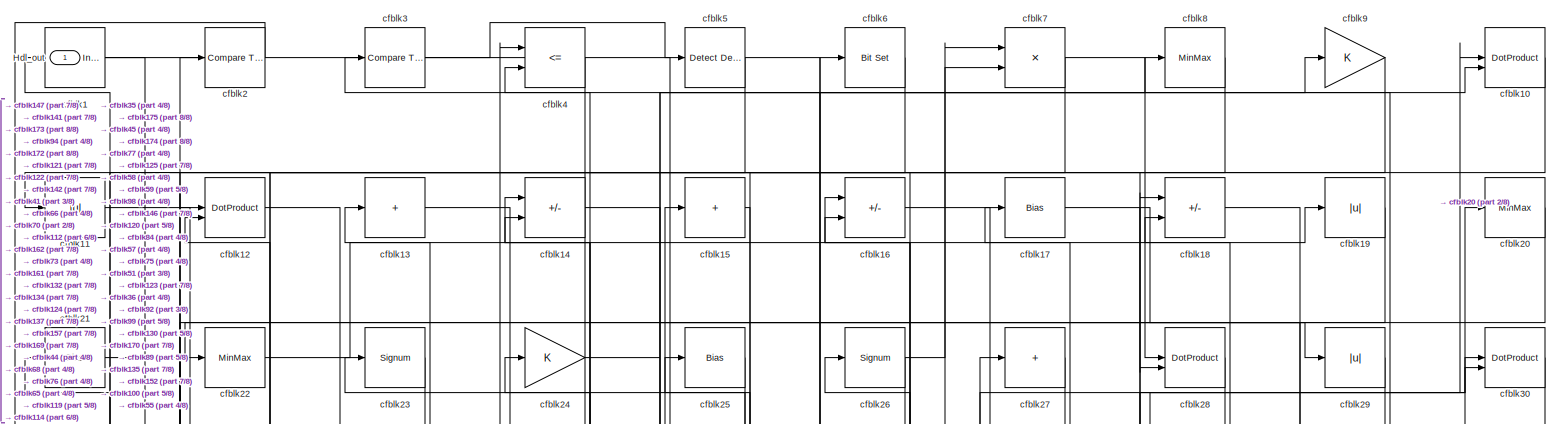
[diagram: root canvas - part 1/8, full width, top band]
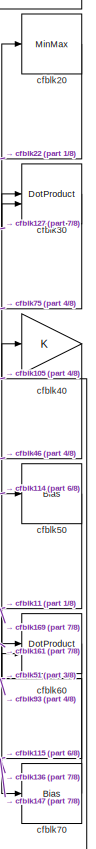
[diagram: root canvas - part 2/8, top right region]
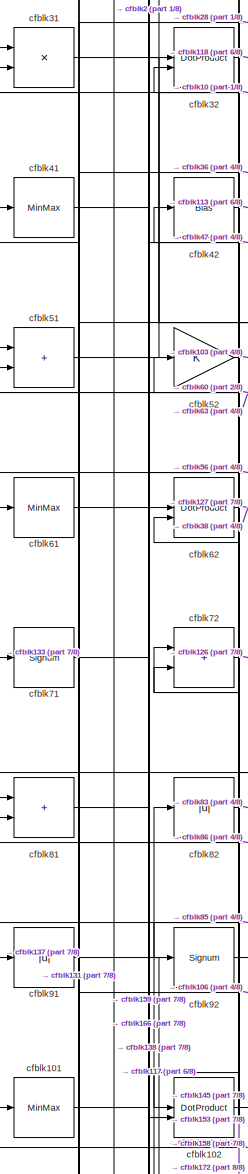
[diagram: root canvas - part 3/8, middle left region]
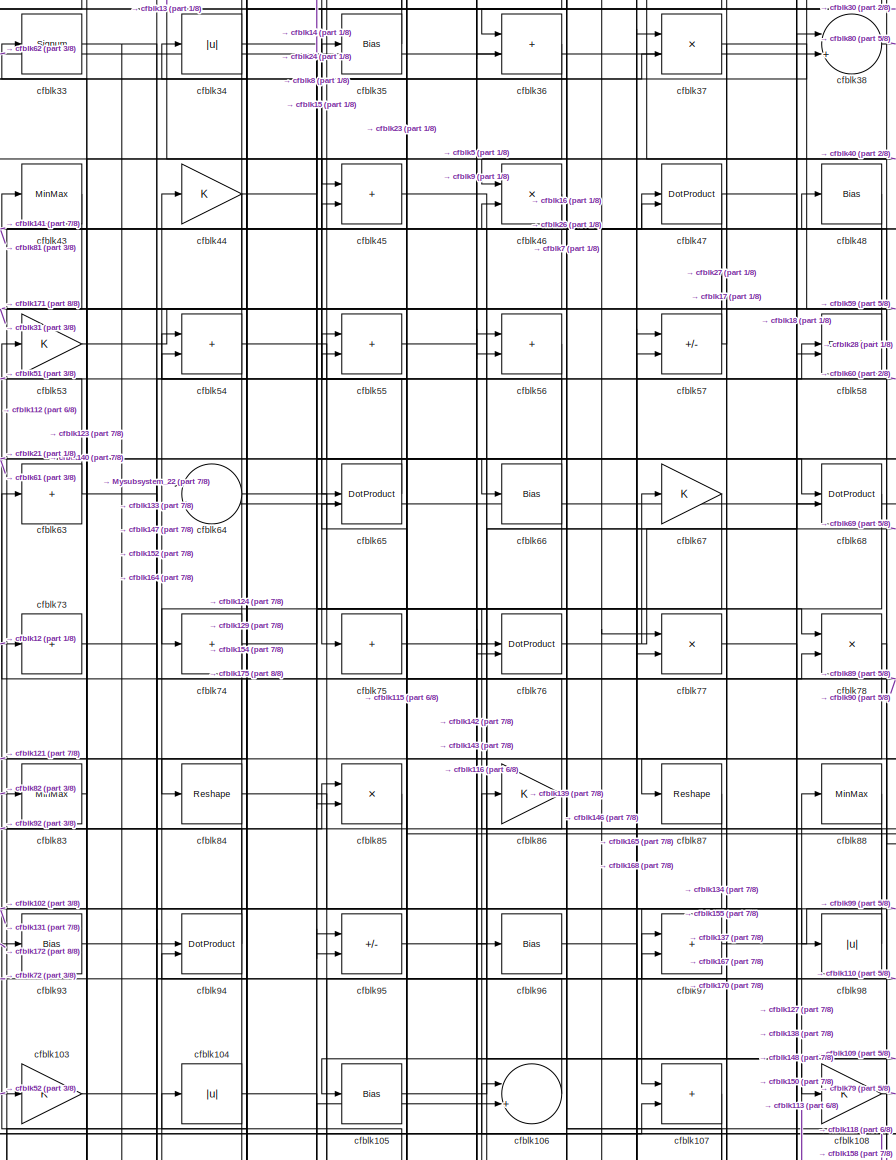
[diagram: root canvas - part 4/8, central region]
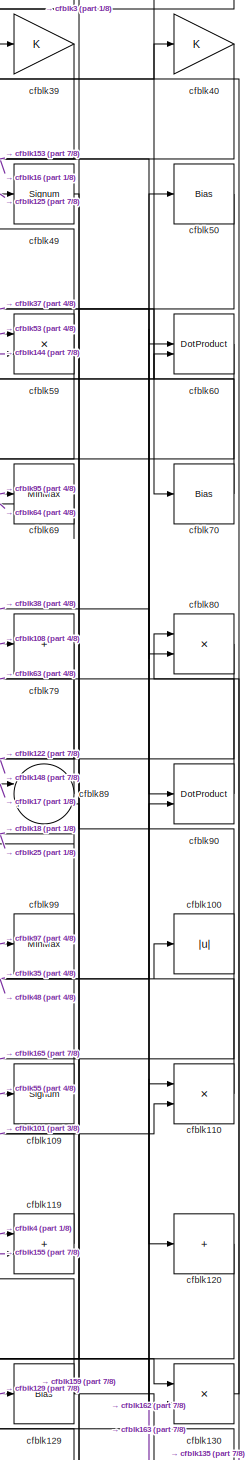
[diagram: root canvas - part 5/8, middle right region]
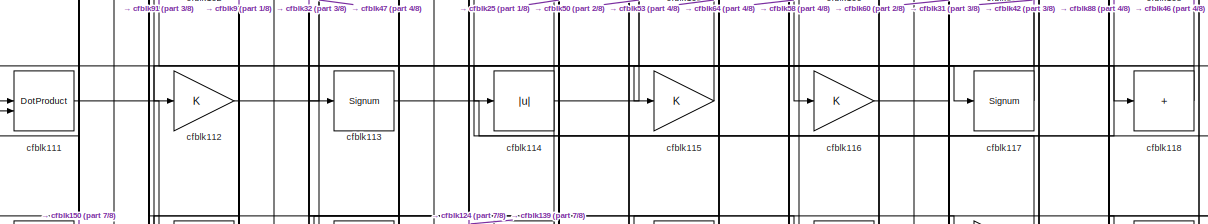
[diagram: root canvas - part 6/8, full width, middle band]
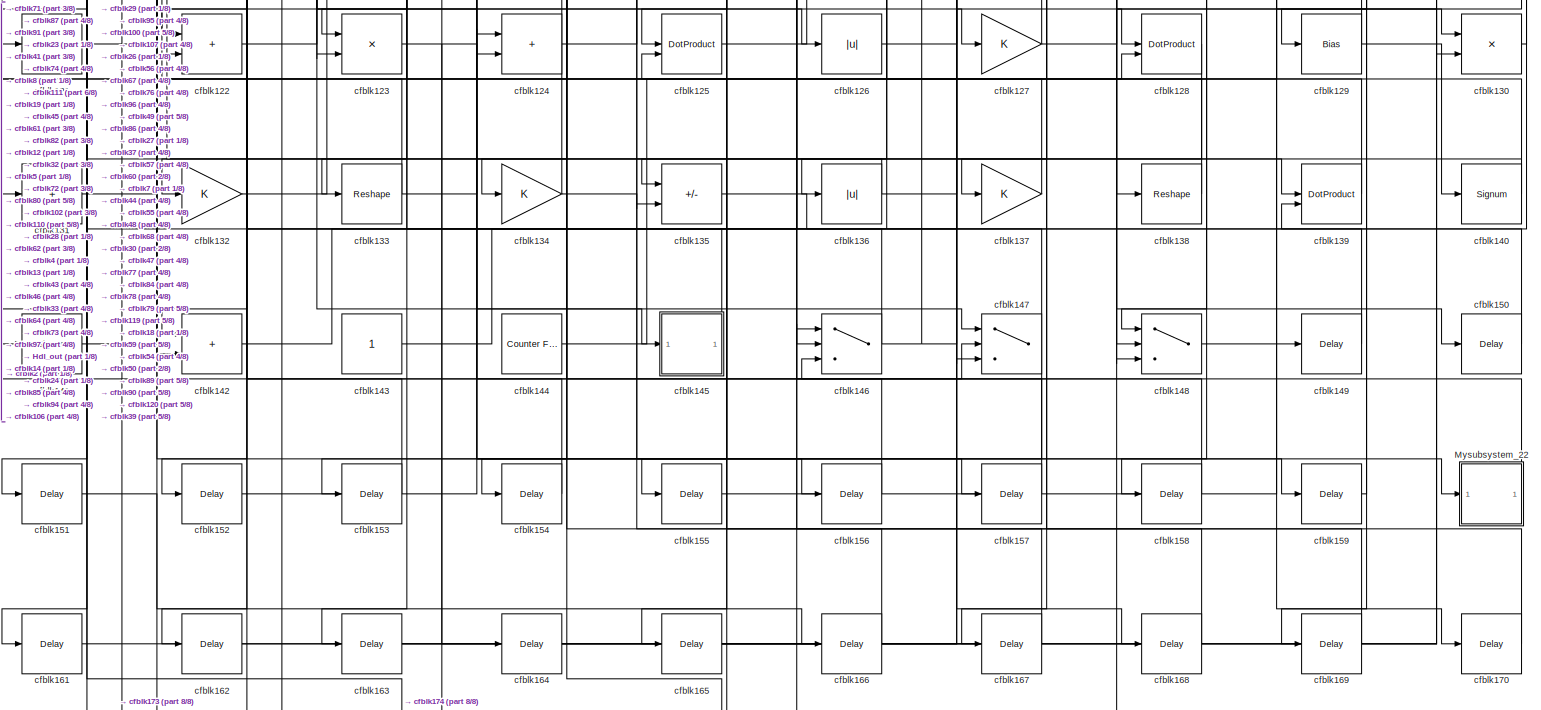
[diagram: root canvas - part 7/8, full width, bottom band]
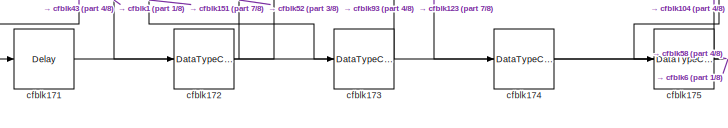
[diagram: root canvas - part 8/8, bottom left region]
MODEL slx_6eb5fe8cac7b
KIND model
CONFIG AbsTol = auto
CONFIG EnableMultiTasking = off
CONFIG FixedStep = auto
CONFIG MaxStep = auto
CONFIG MinStep = auto
CONFIG RelTol = 1e-3
CONFIG SampleTimeConstraint = Unconstrained
CONFIG SolverName = VariableStepAuto
CONFIG StartTime = 0.0
CONFIG StopTime = 10.0
BLOCK [Outport] Hdl_out
  OutDataTypeStr = uint8
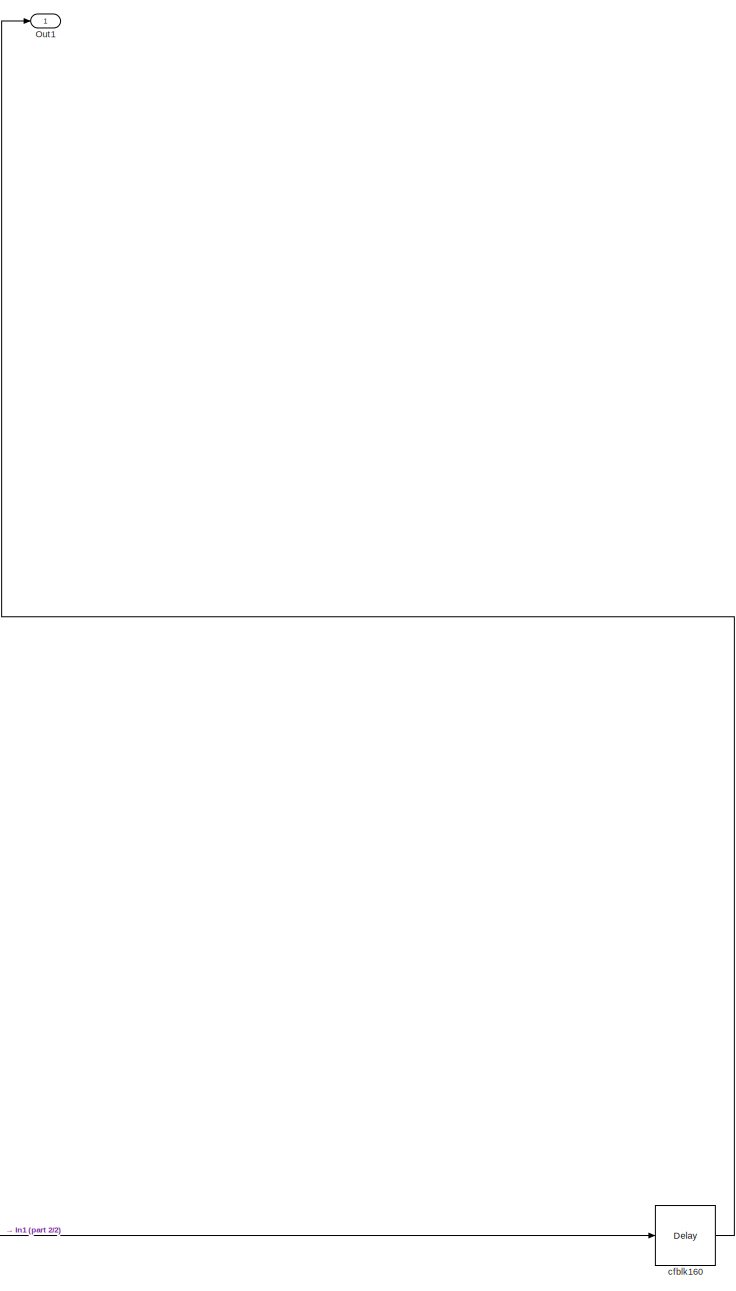
[diagram: Mysubsystem_22 - part 1/2, right side, full height]
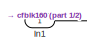
[diagram: Mysubsystem_22 - part 2/2, top left region]
BLOCK [SubSystem] Mysubsystem_22
  RTWFcnName = Mysubsystem_22
  RTWFcnNameOpts = User specified
  RTWFileNameOpts = Use function name
  RTWSystemCode = Reusable function
  TreatAsAtomicUnit = on
BLOCK [Inport] Mysubsystem_22/In1
BLOCK [Outport] Mysubsystem_22/Out1
BLOCK [Delay] Mysubsystem_22/cfblk160
  InputPortMap = u0
  SampleTime = 1
BLOCK [Reference] cfblk1  REF=simulink/Logic and Bit
Operations/Detect
Increase
  LibrarySourceBlock = hdlsllib/Logic and Bit\nOperations/Detect\nIncrease
  SourceBlock = simulink/Logic and Bit\nOperations/Detect\nIncrease
  SourceType = Detect Increase
BLOCK [DotProduct] cfblk10
  OutDataTypeStr = uint8
BLOCK [Abs] cfblk100
  OutDataTypeStr = uint8
  SaturateOnIntegerOverflow = off
BLOCK [MinMax] cfblk101
  OutDataTypeStr = uint8
BLOCK [DotProduct] cfblk102
  OutDataTypeStr = uint8
BLOCK [Gain] cfblk103
  OutDataTypeStr = uint8
BLOCK [Abs] cfblk104
  OutDataTypeStr = uint8
  SaturateOnIntegerOverflow = off
BLOCK [Bias] cfblk105
  Bias = 0.0
  SaturateOnIntegerOverflow = off
BLOCK [Sum] cfblk106
  Inputs = |++
  OutDataTypeStr = uint8
BLOCK [Sum] cfblk107
  IconShape = rectangular
  OutDataTypeStr = uint8
BLOCK [Gain] cfblk108
  OutDataTypeStr = uint8
BLOCK [Signum] cfblk109
BLOCK [Abs] cfblk11
  OutDataTypeStr = uint8
  SaturateOnIntegerOverflow = off
BLOCK [Product] cfblk110
  Inputs = */
  OutDataTypeStr = uint8
  RndMeth = Zero
  SaturateOnIntegerOverflow = on
BLOCK [DotProduct] cfblk111
  OutDataTypeStr = uint8
BLOCK [Gain] cfblk112
  OutDataTypeStr = uint8
BLOCK [Signum] cfblk113
BLOCK [Abs] cfblk114
  OutDataTypeStr = uint8
  SaturateOnIntegerOverflow = off
BLOCK [Gain] cfblk115
  OutDataTypeStr = uint8
BLOCK [Gain] cfblk116
  OutDataTypeStr = uint8
BLOCK [Signum] cfblk117
BLOCK [Sum] cfblk118
  IconShape = rectangular
  Inputs = +
  OutDataTypeStr = uint8
BLOCK [Sum] cfblk119
  IconShape = rectangular
  OutDataTypeStr = uint8
BLOCK [DotProduct] cfblk12
  OutDataTypeStr = uint8
BLOCK [Sum] cfblk120
  IconShape = rectangular
  Inputs = +
  OutDataTypeStr = uint8
BLOCK [Sum] cfblk121
  IconShape = rectangular
  Inputs = +
  OutDataTypeStr = uint8
BLOCK [Sum] cfblk122
  IconShape = rectangular
  OutDataTypeStr = uint8
BLOCK [Product] cfblk123
  Inputs = */
  OutDataTypeStr = uint8
  RndMeth = Zero
  SaturateOnIntegerOverflow = on
BLOCK [Sum] cfblk124
  IconShape = rectangular
  OutDataTypeStr = uint8
BLOCK [DotProduct] cfblk125
  OutDataTypeStr = uint8
BLOCK [Abs] cfblk126
  OutDataTypeStr = uint8
  SaturateOnIntegerOverflow = off
BLOCK [Gain] cfblk127
  OutDataTypeStr = uint8
BLOCK [DotProduct] cfblk128
  OutDataTypeStr = uint8
BLOCK [Bias] cfblk129
  Bias = 0.0
  SaturateOnIntegerOverflow = off
BLOCK [Sum] cfblk13
  IconShape = rectangular
  Inputs = +
  OutDataTypeStr = uint8
BLOCK [Product] cfblk130
  Inputs = */
  OutDataTypeStr = uint8
  RndMeth = Zero
  SaturateOnIntegerOverflow = on
BLOCK [Sum] cfblk131
  IconShape = rectangular
  Inputs = +
  OutDataTypeStr = uint8
BLOCK [Gain] cfblk132
  OutDataTypeStr = uint8
BLOCK [Reshape] cfblk133
BLOCK [Gain] cfblk134
  OutDataTypeStr = uint8
BLOCK [Sum] cfblk135
  IconShape = rectangular
  Inputs = +-
  OutDataTypeStr = uint8
BLOCK [Abs] cfblk136
  OutDataTypeStr = uint8
  SaturateOnIntegerOverflow = off
BLOCK [Gain] cfblk137
  OutDataTypeStr = uint8
BLOCK [Reshape] cfblk138
BLOCK [DotProduct] cfblk139
  OutDataTypeStr = uint8
BLOCK [Sum] cfblk14
  IconShape = rectangular
  Inputs = +-
  OutDataTypeStr = uint8
BLOCK [Signum] cfblk140
BLOCK [Signum] cfblk141
BLOCK [Sum] cfblk142
  IconShape = rectangular
  OutDataTypeStr = uint8
BLOCK [Constant] cfblk143
  OutDataTypeStr = uint8
  SampleTime = -1
BLOCK [Reference] cfblk144  REF=hdlsllib/Sources/Counter
Free-Running
  SourceBlock = hdlsllib/Sources/Counter\nFree-Running
  SourceType = Counter Free-Running
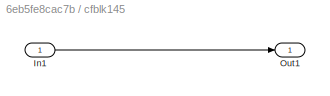
BLOCK [SubSystem] cfblk145
  LibrarySourceBlock = hdlsllib/Ports &\nSubsystems/Subsystem
BLOCK [Inport] cfblk145/In1
BLOCK [Outport] cfblk145/Out1
BLOCK [Switch] cfblk146
  InputSameDT = off
  OutDataTypeStr = uint8
  SaturateOnIntegerOverflow = off
BLOCK [Switch] cfblk147
  InputSameDT = off
  OutDataTypeStr = uint8
  SaturateOnIntegerOverflow = off
BLOCK [Switch] cfblk148
  InputSameDT = off
  OutDataTypeStr = uint8
  SaturateOnIntegerOverflow = off
BLOCK [Delay] cfblk149
  InputPortMap = u0
  SampleTime = 1
BLOCK [Sum] cfblk15
  IconShape = rectangular
  Inputs = +
  OutDataTypeStr = uint8
BLOCK [Delay] cfblk150
  InputPortMap = u0
  SampleTime = 1
BLOCK [Delay] cfblk151
  InputPortMap = u0
  SampleTime = 1
BLOCK [Delay] cfblk152
  InputPortMap = u0
  SampleTime = 1
BLOCK [Delay] cfblk153
  InputPortMap = u0
  SampleTime = 1
BLOCK [Delay] cfblk154
  InputPortMap = u0
  SampleTime = 1
BLOCK [Delay] cfblk155
  InputPortMap = u0
  SampleTime = 1
BLOCK [Delay] cfblk156
  InputPortMap = u0
  SampleTime = 1
BLOCK [Delay] cfblk157
  InputPortMap = u0
  SampleTime = 1
BLOCK [Delay] cfblk158
  InputPortMap = u0
  SampleTime = 1
BLOCK [Delay] cfblk159
  InputPortMap = u0
  SampleTime = 1
BLOCK [Sum] cfblk16
  IconShape = rectangular
  Inputs = +-
  OutDataTypeStr = uint8
BLOCK [Delay] cfblk161
  InputPortMap = u0
  SampleTime = 1
BLOCK [Delay] cfblk162
  InputPortMap = u0
  SampleTime = 1
BLOCK [Delay] cfblk163
  InputPortMap = u0
  SampleTime = 1
BLOCK [Delay] cfblk164
  InputPortMap = u0
  SampleTime = 1
BLOCK [Delay] cfblk165
  InputPortMap = u0
  SampleTime = 1
BLOCK [Delay] cfblk166
  InputPortMap = u0
  SampleTime = 1
BLOCK [Delay] cfblk167
  InputPortMap = u0
  SampleTime = 1
BLOCK [Delay] cfblk168
  InputPortMap = u0
  SampleTime = 1
BLOCK [Delay] cfblk169
  InputPortMap = u0
  SampleTime = 1
BLOCK [Bias] cfblk17
  Bias = 0.0
  SaturateOnIntegerOverflow = off
BLOCK [Delay] cfblk170
  InputPortMap = u0
  SampleTime = 1
BLOCK [Delay] cfblk171
  InputPortMap = u0
  SampleTime = 1
BLOCK [DataTypeConversion] cfblk172
  OutDataTypeStr = uint8
  RndMeth = Floor
  SaturateOnIntegerOverflow = off
BLOCK [DataTypeConversion] cfblk173
  OutDataTypeStr = uint8
  RndMeth = Floor
  SaturateOnIntegerOverflow = off
BLOCK [DataTypeConversion] cfblk174
  OutDataTypeStr = uint8
  RndMeth = Floor
  SaturateOnIntegerOverflow = off
BLOCK [DataTypeConversion] cfblk175
  OutDataTypeStr = uint8
  RndMeth = Floor
  SaturateOnIntegerOverflow = off
BLOCK [Sum] cfblk18
  IconShape = rectangular
  Inputs = +-
  OutDataTypeStr = uint8
BLOCK [Abs] cfblk19
  OutDataTypeStr = uint8
  SaturateOnIntegerOverflow = off
BLOCK [Reference] cfblk2  REF=hdlsllib/Logic and Bit
Operations/Compare
To Constant
  SourceBlock = hdlsllib/Logic and Bit\nOperations/Compare\nTo Constant
  SourceType = Compare To Constant
BLOCK [MinMax] cfblk20
  OutDataTypeStr = uint8
BLOCK [Bias] cfblk21
  Bias = 0.0
  SaturateOnIntegerOverflow = off
BLOCK [MinMax] cfblk22
  OutDataTypeStr = uint8
BLOCK [Signum] cfblk23
BLOCK [Gain] cfblk24
  OutDataTypeStr = uint8
BLOCK [Bias] cfblk25
  Bias = 0.0
  SaturateOnIntegerOverflow = off
BLOCK [Signum] cfblk26
BLOCK [Sum] cfblk27
  IconShape = rectangular
  Inputs = +
  OutDataTypeStr = uint8
BLOCK [DotProduct] cfblk28
  OutDataTypeStr = uint8
BLOCK [Abs] cfblk29
  OutDataTypeStr = uint8
  SaturateOnIntegerOverflow = off
BLOCK [Reference] cfblk3  REF=hdlsllib/Logic and Bit
Operations/Compare
To Constant
  SourceBlock = hdlsllib/Logic and Bit\nOperations/Compare\nTo Constant
  SourceType = Compare To Constant
BLOCK [DotProduct] cfblk30
  OutDataTypeStr = uint8
BLOCK [Product] cfblk31
  Inputs = */
  OutDataTypeStr = uint8
  RndMeth = Zero
  SaturateOnIntegerOverflow = on
BLOCK [DotProduct] cfblk32
  OutDataTypeStr = uint8
BLOCK [Signum] cfblk33
BLOCK [Abs] cfblk34
  OutDataTypeStr = uint8
  SaturateOnIntegerOverflow = off
BLOCK [Bias] cfblk35
  Bias = 0.0
  SaturateOnIntegerOverflow = off
BLOCK [Sum] cfblk36
  IconShape = rectangular
  OutDataTypeStr = uint8
BLOCK [Product] cfblk37
  Inputs = */
  OutDataTypeStr = uint8
  RndMeth = Zero
  SaturateOnIntegerOverflow = on
BLOCK [Sum] cfblk38
  Inputs = |++
  OutDataTypeStr = uint8
BLOCK [Gain] cfblk39
  OutDataTypeStr = uint8
BLOCK [RelationalOperator] cfblk4
  InputSameDT = off
  Operator = <=
  OutDataTypeStr = boolean
BLOCK [Gain] cfblk40
  OutDataTypeStr = uint8
BLOCK [MinMax] cfblk41
  OutDataTypeStr = uint8
BLOCK [Bias] cfblk42
  Bias = 0.0
  SaturateOnIntegerOverflow = off
BLOCK [MinMax] cfblk43
  OutDataTypeStr = uint8
BLOCK [Gain] cfblk44
  OutDataTypeStr = uint8
BLOCK [Sum] cfblk45
  IconShape = rectangular
  OutDataTypeStr = uint8
BLOCK [Product] cfblk46
  Inputs = */
  OutDataTypeStr = uint8
  RndMeth = Zero
  SaturateOnIntegerOverflow = on
BLOCK [DotProduct] cfblk47
  OutDataTypeStr = uint8
BLOCK [Bias] cfblk48
  Bias = 0.0
  SaturateOnIntegerOverflow = off
BLOCK [Signum] cfblk49
BLOCK [Reference] cfblk5  REF=simulink/Logic and Bit
Operations/Detect
Decrease
  LibrarySourceBlock = hdlsllib/Logic and Bit\nOperations/Detect\nDecrease
  SourceBlock = simulink/Logic and Bit\nOperations/Detect\nDecrease
  SourceType = Detect Decrease
BLOCK [Bias] cfblk50
  Bias = 0.0
  SaturateOnIntegerOverflow = off
BLOCK [Sum] cfblk51
  IconShape = rectangular
  OutDataTypeStr = uint8
BLOCK [Gain] cfblk52
  OutDataTypeStr = uint8
BLOCK [Gain] cfblk53
  OutDataTypeStr = uint8
BLOCK [Sum] cfblk54
  IconShape = rectangular
  OutDataTypeStr = uint8
BLOCK [Sum] cfblk55
  IconShape = rectangular
  OutDataTypeStr = uint8
BLOCK [Sum] cfblk56
  IconShape = rectangular
  OutDataTypeStr = uint8
BLOCK [Sum] cfblk57
  IconShape = rectangular
  Inputs = +-
  OutDataTypeStr = uint8
BLOCK [DotProduct] cfblk58
  OutDataTypeStr = uint8
BLOCK [Product] cfblk59
  Inputs = */
  OutDataTypeStr = uint8
  RndMeth = Zero
  SaturateOnIntegerOverflow = on
BLOCK [Reference] cfblk6  REF=simulink/Logic and Bit
Operations/Bit Set
  LibrarySourceBlock = hdlsllib/Logic and Bit\nOperations/Bit Set
  SourceBlock = simulink/Logic and Bit\nOperations/Bit Set
  SourceType = Bit Set
BLOCK [DotProduct] cfblk60
  OutDataTypeStr = uint8
BLOCK [MinMax] cfblk61
  OutDataTypeStr = uint8
BLOCK [DotProduct] cfblk62
  OutDataTypeStr = uint8
BLOCK [Sum] cfblk63
  IconShape = rectangular
  Inputs = +
  OutDataTypeStr = uint8
BLOCK [Sum] cfblk64
  Inputs = |++
  OutDataTypeStr = uint8
BLOCK [DotProduct] cfblk65
  OutDataTypeStr = uint8
BLOCK [Bias] cfblk66
  Bias = 0.0
  SaturateOnIntegerOverflow = off
BLOCK [Gain] cfblk67
  OutDataTypeStr = uint8
BLOCK [DotProduct] cfblk68
  OutDataTypeStr = uint8
BLOCK [MinMax] cfblk69
  OutDataTypeStr = uint8
BLOCK [Product] cfblk7
  Inputs = */
  OutDataTypeStr = uint8
  RndMeth = Zero
  SaturateOnIntegerOverflow = on
BLOCK [Bias] cfblk70
  Bias = 0.0
  SaturateOnIntegerOverflow = off
BLOCK [Signum] cfblk71
BLOCK [Sum] cfblk72
  IconShape = rectangular
  OutDataTypeStr = uint8
BLOCK [Sum] cfblk73
  IconShape = rectangular
  Inputs = +
  OutDataTypeStr = uint8
BLOCK [Sum] cfblk74
  IconShape = rectangular
  Inputs = +
  OutDataTypeStr = uint8
BLOCK [Sum] cfblk75
  IconShape = rectangular
  Inputs = +
  OutDataTypeStr = uint8
BLOCK [DotProduct] cfblk76
  OutDataTypeStr = uint8
BLOCK [Product] cfblk77
  Inputs = */
  OutDataTypeStr = uint8
  RndMeth = Zero
  SaturateOnIntegerOverflow = on
BLOCK [Product] cfblk78
  Inputs = */
  OutDataTypeStr = uint8
  RndMeth = Zero
  SaturateOnIntegerOverflow = on
BLOCK [Sum] cfblk79
  IconShape = rectangular
  Inputs = +
  OutDataTypeStr = uint8
BLOCK [MinMax] cfblk8
  OutDataTypeStr = uint8
BLOCK [Product] cfblk80
  Inputs = */
  OutDataTypeStr = uint8
  RndMeth = Zero
  SaturateOnIntegerOverflow = on
BLOCK [Sum] cfblk81
  IconShape = rectangular
  OutDataTypeStr = uint8
BLOCK [Abs] cfblk82
  OutDataTypeStr = uint8
  SaturateOnIntegerOverflow = off
BLOCK [MinMax] cfblk83
  OutDataTypeStr = uint8
BLOCK [Reshape] cfblk84
BLOCK [Product] cfblk85
  Inputs = */
  OutDataTypeStr = uint8
  RndMeth = Zero
  SaturateOnIntegerOverflow = on
BLOCK [Gain] cfblk86
  OutDataTypeStr = uint8
BLOCK [Reshape] cfblk87
BLOCK [MinMax] cfblk88
  OutDataTypeStr = uint8
BLOCK [Sum] cfblk89
  Inputs = |++
  OutDataTypeStr = uint8
BLOCK [Gain] cfblk9
  OutDataTypeStr = uint8
BLOCK [DotProduct] cfblk90
  OutDataTypeStr = uint8
BLOCK [Abs] cfblk91
  OutDataTypeStr = uint8
  SaturateOnIntegerOverflow = off
BLOCK [Signum] cfblk92
BLOCK [Bias] cfblk93
  Bias = 0.0
  SaturateOnIntegerOverflow = off
BLOCK [DotProduct] cfblk94
  OutDataTypeStr = uint8
BLOCK [Sum] cfblk95
  IconShape = rectangular
  Inputs = +-
  OutDataTypeStr = uint8
BLOCK [Bias] cfblk96
  Bias = 0.0
  SaturateOnIntegerOverflow = off
BLOCK [Sum] cfblk97
  IconShape = rectangular
  OutDataTypeStr = uint8
BLOCK [Abs] cfblk98
  OutDataTypeStr = uint8
  SaturateOnIntegerOverflow = off
BLOCK [MinMax] cfblk99
  OutDataTypeStr = uint8
LINE Mysubsystem_22/In1:1 -> Mysubsystem_22/cfblk160:1
LINE Mysubsystem_22/cfblk160:1 -> Mysubsystem_22/Out1:1
LINE Mysubsystem_22:1 -> cfblk76:1
NET cfblk100:1 -> cfblk165:1, cfblk3:1
LINE cfblk101:1 -> cfblk62:1
LINE cfblk102:1 -> cfblk145:1
NET cfblk103:1 -> cfblk78:2, cfblk94:1
LINE cfblk104:1 -> cfblk107:2
LINE cfblk105:1 -> cfblk40:1
NET cfblk106:1 -> cfblk31:2, cfblk72:2
NET cfblk107:1 -> cfblk134:1, cfblk155:1
LINE cfblk108:1 -> cfblk79:1
LINE cfblk109:1 -> cfblk48:1
LINE cfblk10:1 -> cfblk11:1
NET cfblk110:1 -> cfblk100:1, cfblk35:1
NET cfblk111:1 -> cfblk124:2, cfblk139:1
LINE cfblk112:1 -> cfblk47:1
LINE cfblk113:1 -> cfblk88:1
LINE cfblk114:1 -> cfblk50:1
LINE cfblk115:1 -> cfblk53:1
LINE cfblk116:1 -> cfblk58:1
NET cfblk117:1 -> cfblk31:1, cfblk42:1
NET cfblk118:1 -> cfblk111:1, cfblk46:2
LINE cfblk119:1 -> cfblk101:1
LINE cfblk11:1 -> cfblk70:1
LINE cfblk120:1 -> cfblk148:2
LINE cfblk121:1 -> cfblk12:1
LINE cfblk122:1 -> cfblk110:2
NET cfblk123:1 -> cfblk157:1, cfblk174:1
NET cfblk124:1 -> cfblk106:2, cfblk14:1
LINE cfblk125:1 -> cfblk49:1
LINE cfblk126:1 -> cfblk128:1
NET cfblk127:1 -> cfblk30:1, cfblk44:1, cfblk55:2
LINE cfblk128:1 -> cfblk151:1
NET cfblk129:1 -> cfblk140:1, cfblk54:2
LINE cfblk12:1 -> cfblk73:1
LINE cfblk130:1 -> cfblk80:1
NET cfblk131:1 -> cfblk128:2, cfblk41:1
LINE cfblk132:1 -> cfblk4:1
NET cfblk133:1 -> cfblk71:1, cfblk97:1
NET cfblk134:1 -> Hdl_out:1, cfblk156:1
LINE cfblk135:1 -> cfblk39:1
NET cfblk136:1 -> cfblk135:1, cfblk30:2
NET cfblk137:1 -> cfblk24:1, cfblk91:1, cfblk94:2
LINE cfblk138:1 -> cfblk82:1
LINE cfblk139:1 -> cfblk86:1
LINE cfblk13:1 -> cfblk65:1
NET cfblk140:1 -> cfblk132:1, cfblk43:1
LINE cfblk141:1 -> cfblk45:2
NET cfblk142:1 -> cfblk57:1, cfblk96:1
LINE cfblk143:1 -> cfblk56:1
LINE cfblk144:1 -> cfblk59:2
LINE cfblk145/In1:1 -> cfblk145/Out1:1
LINE cfblk145:1 -> cfblk72:1
NET cfblk146:1 -> cfblk12:2, cfblk27:1, cfblk77:1, cfblk7:2
NET cfblk147:1 -> cfblk106:1, cfblk13:1, cfblk163:1
LINE cfblk148:1 -> cfblk149:1
LINE cfblk149:1 -> cfblk139:2
NET cfblk14:1 -> cfblk29:1, cfblk76:2
LINE cfblk150:1 -> cfblk111:2
LINE cfblk151:1 -> cfblk173:1
LINE cfblk152:1 -> cfblk64:1
LINE cfblk153:1 -> cfblk62:2
LINE cfblk154:1 -> cfblk124:1
LINE cfblk155:1 -> cfblk119:2
LINE cfblk156:1 -> cfblk146:3
LINE cfblk157:1 -> cfblk14:2
LINE cfblk158:1 -> cfblk32:2
LINE cfblk159:1 -> cfblk89:2
LINE cfblk15:1 -> cfblk45:1
LINE cfblk161:1 -> cfblk60:1
LINE cfblk162:1 -> cfblk110:1
LINE cfblk163:1 -> cfblk90:2
LINE cfblk164:1 -> cfblk57:2
LINE cfblk165:1 -> cfblk37:1
LINE cfblk166:1 -> cfblk125:2
LINE cfblk167:1 -> cfblk95:1
LINE cfblk168:1 -> cfblk146:1
LINE cfblk169:1 -> cfblk4:2
LINE cfblk16:1 -> cfblk120:1
LINE cfblk170:1 -> cfblk97:2
LINE cfblk171:1 -> cfblk58:2
NET cfblk172:1 -> cfblk52:1, cfblk93:1
LINE cfblk173:1 -> cfblk1:1
LINE cfblk174:1 -> cfblk6:1
LINE cfblk175:1 -> cfblk104:1
NET cfblk17:1 -> cfblk130:2, cfblk89:1
NET cfblk18:1 -> cfblk130:1, cfblk170:1
LINE cfblk19:1 -> cfblk122:2
LINE cfblk1:1 -> cfblk172:1
LINE cfblk20:1 -> cfblk22:1
LINE cfblk21:1 -> cfblk66:1
LINE cfblk22:1 -> cfblk19:1
LINE cfblk23:1 -> cfblk161:1
NET cfblk24:1 -> cfblk10:2, cfblk68:2
LINE cfblk25:1 -> cfblk114:1
NET cfblk26:1 -> cfblk125:1, cfblk7:1
LINE cfblk27:1 -> cfblk84:1
NET cfblk28:1 -> cfblk123:2, cfblk36:2, cfblk92:1
NET cfblk29:1 -> cfblk135:2, cfblk152:1
LINE cfblk2:1 -> cfblk147:2
LINE cfblk30:1 -> cfblk75:1
LINE cfblk31:1 -> cfblk56:2
LINE cfblk32:1 -> cfblk118:1
NET cfblk33:1 -> cfblk147:1, cfblk164:1
LINE cfblk34:1 -> cfblk78:1
LINE cfblk35:1 -> cfblk23:1
LINE cfblk36:1 -> cfblk81:1
NET cfblk37:1 -> cfblk87:1, cfblk90:1
LINE cfblk38:1 -> cfblk80:2
LINE cfblk39:1 -> cfblk153:1
LINE cfblk3:1 -> cfblk5:1
LINE cfblk40:1 -> cfblk46:1
NET cfblk41:1 -> cfblk166:1, cfblk2:1
LINE cfblk42:1 -> cfblk113:1
NET cfblk43:1 -> cfblk142:1, cfblk171:1
NET cfblk44:1 -> cfblk133:1, cfblk8:1
LINE cfblk45:1 -> cfblk108:1
LINE cfblk46:1 -> cfblk123:1
NET cfblk47:1 -> cfblk102:2, cfblk150:1
LINE cfblk48:1 -> cfblk137:1
LINE cfblk49:1 -> cfblk129:1
LINE cfblk4:1 -> cfblk119:1
LINE cfblk50:1 -> cfblk169:1
LINE cfblk51:1 -> cfblk10:1
LINE cfblk52:1 -> cfblk103:1
LINE cfblk53:1 -> cfblk59:1
LINE cfblk54:1 -> cfblk68:1
NET cfblk55:1 -> cfblk109:1, cfblk9:1
LINE cfblk56:1 -> cfblk61:1
NET cfblk57:1 -> cfblk17:1, cfblk34:1
LINE cfblk58:1 -> cfblk26:1
NET cfblk59:1 -> cfblk16:2, cfblk95:2
NET cfblk5:1 -> cfblk162:1, cfblk77:2
NET cfblk60:1 -> cfblk115:1, cfblk136:1, cfblk147:3, cfblk51:2
LINE cfblk61:1 -> cfblk159:1
NET cfblk62:1 -> cfblk127:1, cfblk38:2
NET cfblk63:1 -> cfblk51:1, cfblk98:1
LINE cfblk64:1 -> cfblk116:1
LINE cfblk65:1 -> cfblk15:1
NET cfblk66:1 -> cfblk54:1, cfblk74:1
LINE cfblk67:1 -> cfblk146:2
NET cfblk68:1 -> cfblk167:1, cfblk85:2
LINE cfblk69:1 -> cfblk64:2
LINE cfblk6:1 -> cfblk175:1
LINE cfblk70:1 -> cfblk20:1
LINE cfblk71:1 -> cfblk32:1
LINE cfblk72:1 -> cfblk126:1
LINE cfblk73:1 -> Mysubsystem_22:1
NET cfblk74:1 -> cfblk121:1, cfblk37:2
LINE cfblk75:1 -> cfblk18:1
NET cfblk76:1 -> cfblk38:1, cfblk67:1
LINE cfblk77:1 -> cfblk138:1
NET cfblk78:1 -> cfblk105:1, cfblk158:1
LINE cfblk79:1 -> cfblk148:1
NET cfblk7:1 -> cfblk142:2, cfblk28:1, cfblk36:1
LINE cfblk80:1 -> cfblk122:1
LINE cfblk81:1 -> cfblk47:2
LINE cfblk82:1 -> cfblk83:1
LINE cfblk83:1 -> cfblk33:1
LINE cfblk84:1 -> cfblk148:3
NET cfblk85:1 -> cfblk102:1, cfblk154:1
NET cfblk86:1 -> cfblk65:2, cfblk81:2
LINE cfblk87:1 -> cfblk131:1
LINE cfblk88:1 -> cfblk107:1
LINE cfblk89:1 -> cfblk55:1
NET cfblk8:1 -> cfblk141:1, cfblk28:2
LINE cfblk90:1 -> cfblk63:1
LINE cfblk91:1 -> cfblk117:1
LINE cfblk92:1 -> cfblk85:1
LINE cfblk93:1 -> cfblk60:2
LINE cfblk94:1 -> cfblk21:1
LINE cfblk95:1 -> cfblk69:1
LINE cfblk96:1 -> cfblk168:1
LINE cfblk97:1 -> cfblk99:1
LINE cfblk98:1 -> cfblk16:1
NET cfblk99:1 -> cfblk18:2, cfblk25:1
LINE cfblk9:1 -> cfblk112:1
note: NET lines group one-source signal fan-out (src -> all destinations, sorted); 1:1 wires keep LINE
